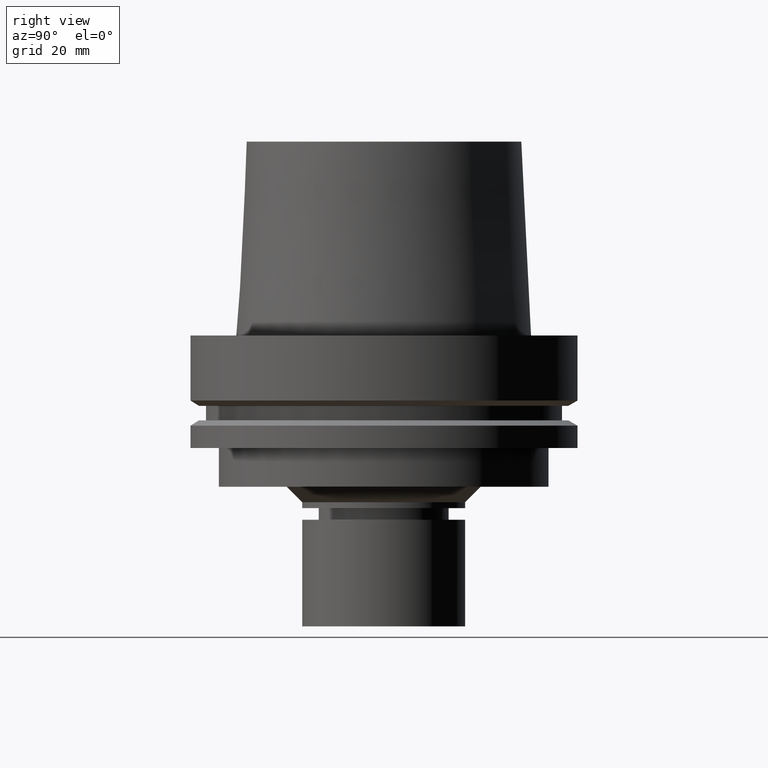
[diagram: clean part render]
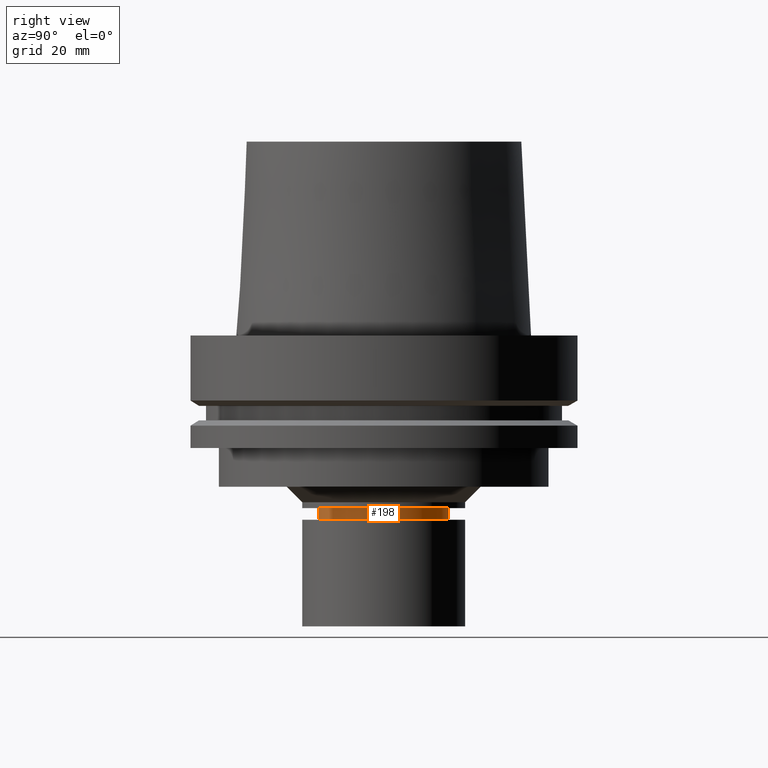
[diagram: same view with one face highlighted and labeled with its STEP entity id]
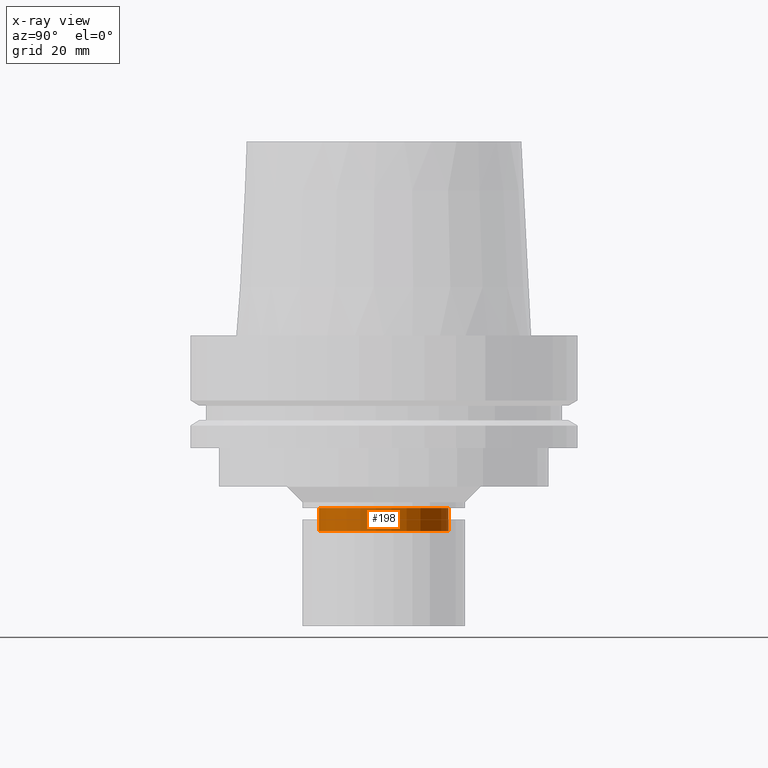
[diagram: x-ray of the same camera — body ghosted, the highlighted face saturated]
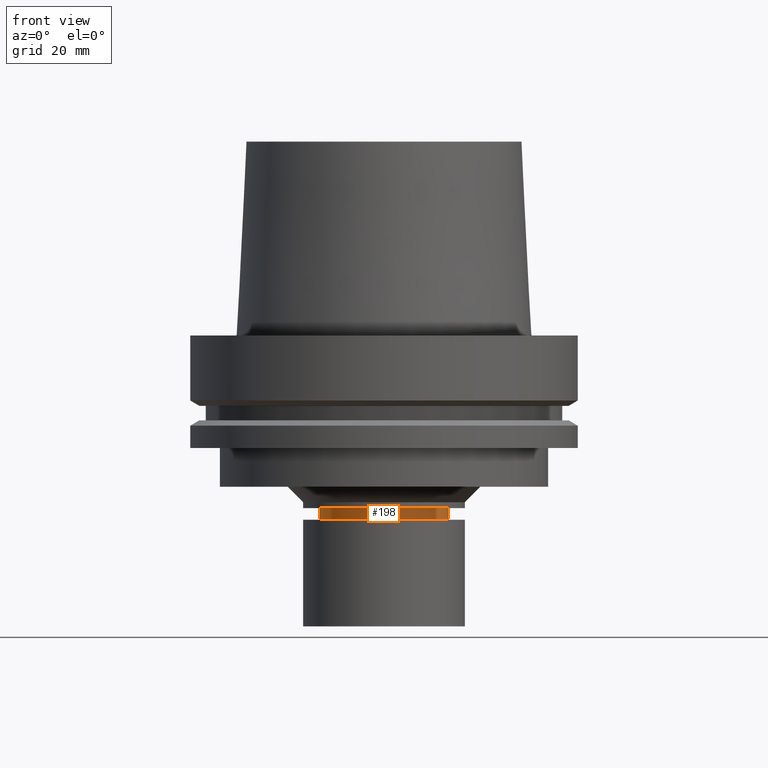
[diagram: same view with one face highlighted and labeled with its STEP entity id]
A machine part, right view. The second image highlights one B-rep face of the part: STEP entity #198.
The next image is the same camera in x-ray: the body ghosted, the highlighted face saturated — about 0% of this face is hidden behind the body in this view.
A second angle (front view) of the same face is appended — the face is thin or edge-on in the first view.
In plain terms, the highlighted cylindrical surface (bore or boss wall) has radius 16.75 mm, axis along (0, 0, -1).
Its self-contained STEP definition (entity closure, byte-faithful):
#106=EDGE_CURVE('Unnamed[1]',#260,#260,#261,.T.);
#170=EDGE_CURVE('Unnamed[1]',#358,#358,#359,.T.);
#198=ADVANCED_FACE('Unnamed[1]',(#401,#402),#403,.T.);
#260=VERTEX_POINT('',#471);
#261=CIRCLE('',#472,16.7500000000017);
#358=VERTEX_POINT('',#593);
#359=CIRCLE('',#594,16.7499999999907);
#401=FACE_BOUND('',#645,.T.);
#402=FACE_BOUND('',#646,.T.);
#403=CYLINDRICAL_SURFACE('',#647,16.7499999999962);
#471=CARTESIAN_POINT('',(3.09023239289714E-015,16.7500000000017,-50.4673248654009));
#472=AXIS2_PLACEMENT_3D('',#696,#697,#698);
#593=CARTESIAN_POINT('',(2.72483912810281E-015,16.7499999999907,-44.4999999999992));
#594=AXIS2_PLACEMENT_3D('',#805,#806,#807);
#645=EDGE_LOOP('',(#852));
#646=EDGE_LOOP('',(#853));
#647=AXIS2_PLACEMENT_3D('',#854,#855,#856);
#696=CARTESIAN_POINT('',(3.09023239289714E-015,6.18046478579429E-015,-50.4673248654009));
#697=DIRECTION('',(6.12323399573677E-017,1.22464679914735E-016,-1.0));
#698=DIRECTION('',(-1.23259516440783E-032,1.0,1.22464679914735E-016));
#805=CARTESIAN_POINT('',(2.72483912810281E-015,5.44967825620562E-015,-44.4999999999992));
#806=DIRECTION('',(6.12323399573677E-017,1.22464679914735E-016,-1.0));
#807=DIRECTION('',(-1.23259516440783E-032,1.0,1.22464679914735E-016));
#852=ORIENTED_EDGE('',*,*,#106,.F.);
#853=ORIENTED_EDGE('',*,*,#170,.T.);
#854=CARTESIAN_POINT('',(2.90753576049998E-015,5.81507152099995E-015,-47.4836624327001));
#855=DIRECTION('',(6.12323399573676E-017,1.22464679914735E-016,-1.0));
#856=DIRECTION('',(-1.23259516440783E-032,1.0,1.22464679914735E-016));